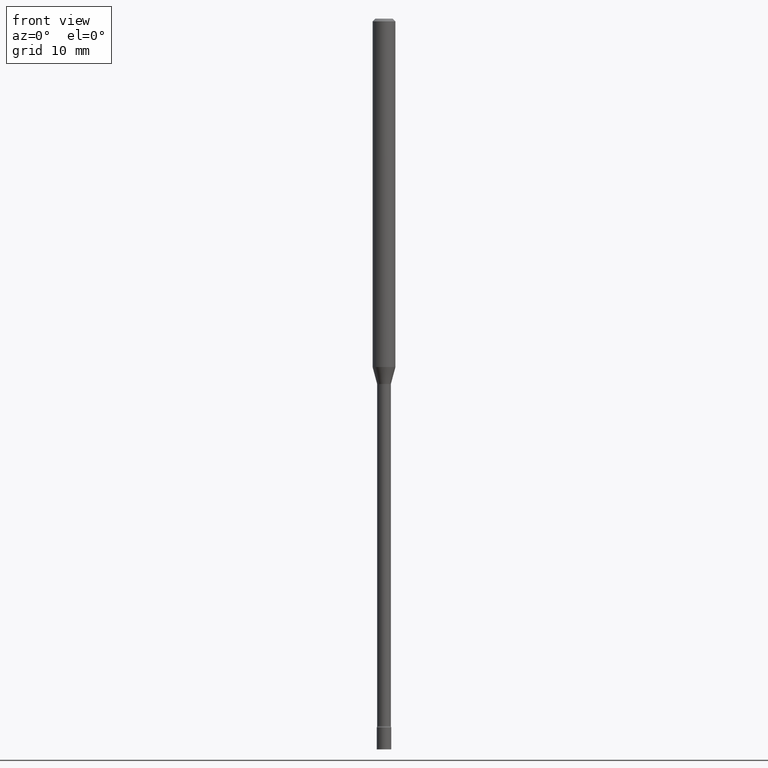
[diagram: clean part render]
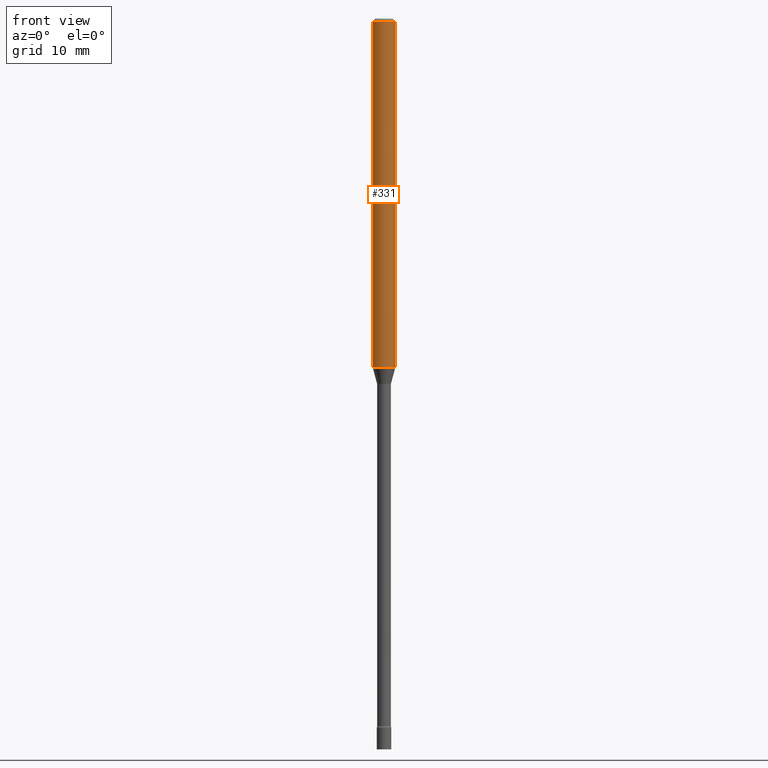
[diagram: same view with one face highlighted and labeled with its STEP entity id]
A machine part, front view. The second image highlights one B-rep face of the part: STEP entity #331.
In plain terms, the highlighted cylindrical surface (edge-blend (fillet) strip) has radius 1.5875 mm, axis along (-0, 0, 1).
Its self-contained STEP definition (entity closure, byte-faithful):
#34 = ORIENTED_EDGE ( 'NONE', *, *, #66, .F. ) ;
#53 = ORIENTED_EDGE ( 'NONE', *, *, #393, .T. ) ;
#66 = EDGE_CURVE ( 'NONE', #202, #379, #497, .T. ) ;
#77 = ORIENTED_EDGE ( 'NONE', *, *, #113, .T. ) ;
#96 = VERTEX_POINT ( 'NONE', #463 ) ;
#98 = EDGE_CURVE ( 'NONE', #379, #99, #358, .T. ) ;
#99 = VERTEX_POINT ( 'NONE', #421 ) ;
#102 = DIRECTION ( 'NONE',  ( -2.445468806185136877E-29, 3.491481338843145188E-15, 1.000000000000000000 ) ) ;
#113 = EDGE_CURVE ( 'NONE', #96, #99, #503, .T. ) ;
#125 = CARTESIAN_POINT ( 'NONE',  ( -0.06250000000000000000, -6.214416862655221682E-15, -1.907071934891535037 ) ) ;
#135 = CYLINDRICAL_SURFACE ( 'NONE', #402, 0.06250000000000000000 ) ;
#139 = CARTESIAN_POINT ( 'NONE',  ( -0.06250000000000000000, 4.440892098500626162E-16, -3.074334431409316114E-30 ) ) ;
#142 = VECTOR ( 'NONE', #430, 39.37007874015748143 ) ;
#145 = CARTESIAN_POINT ( 'NONE',  ( 0.000000000000000000, 0.000000000000000000, 0.000000000000000000 ) ) ;
#146 = CARTESIAN_POINT ( 'NONE',  ( 0.06250000000000000000, -4.364351673553916694E-16, 3.047610484872459871E-30 ) ) ;
#166 = ORIENTED_EDGE ( 'NONE', *, *, #98, .F. ) ;
#189 = AXIS2_PLACEMENT_3D ( 'NONE', #474, #348, #264 ) ;
#202 = VERTEX_POINT ( 'NONE', #125 ) ;
#253 = CARTESIAN_POINT ( 'NONE',  ( -0.06250000000000000000, -2.911349936443903664E-15, -0.01500000000000003067 ) ) ;
#257 = DIRECTION ( 'NONE',  ( 1.000000000000000000, -6.982962677686262766E-15, 0.000000000000000000 ) ) ;
#264 = DIRECTION ( 'NONE',  ( 1.000000000000000000, -6.982962677686266711E-15, 0.000000000000000000 ) ) ;
#331 = ADVANCED_FACE ( 'NONE', ( #415 ), #135, .T. ) ;
#335 = CARTESIAN_POINT ( 'NONE',  ( 4.663684927928380313E-29, -6.658506072505285087E-15, -1.907071934891535037 ) ) ;
#348 = DIRECTION ( 'NONE',  ( -2.445468806185136597E-29, 3.491481338843145583E-15, 1.000000000000000000 ) ) ;
#358 = CIRCLE ( 'NONE', #189, 0.06250000000000000000 ) ;
#370 = EDGE_LOOP ( 'NONE', ( #34, #53, #77, #166 ) ) ;
#377 = CIRCLE ( 'NONE', #417, 0.06250000000000000000 ) ;
#379 = VERTEX_POINT ( 'NONE', #253 ) ;
#393 = EDGE_CURVE ( 'NONE', #202, #96, #377, .T. ) ;
#402 = AXIS2_PLACEMENT_3D ( 'NONE', #145, #456, #501 ) ;
#415 = FACE_OUTER_BOUND ( 'NONE', #370, .T. ) ;
#417 = AXIS2_PLACEMENT_3D ( 'NONE', #335, #459, #257 ) ;
#421 = CARTESIAN_POINT ( 'NONE',  ( 0.06250000000000000000, -4.888073874380389458E-16, -0.01500000000000003067 ) ) ;
#430 = DIRECTION ( 'NONE',  ( -2.445468806185136877E-29, 3.491481338843145188E-15, 1.000000000000000000 ) ) ;
#456 = DIRECTION ( 'NONE',  ( -2.445468806185136597E-29, 3.491481338843145583E-15, 1.000000000000000000 ) ) ;
#459 = DIRECTION ( 'NONE',  ( -2.445468806185136597E-29, 3.491481338843145583E-15, 1.000000000000000000 ) ) ;
#461 = VECTOR ( 'NONE', #102, 39.37007874015748143 ) ;
#463 = CARTESIAN_POINT ( 'NONE',  ( 0.06250000000000000000, -7.094941239860676757E-15, -1.907071934891535037 ) ) ;
#474 = CARTESIAN_POINT ( 'NONE',  ( 3.668203209277712094E-31, -5.237222008264728876E-17, -0.01500000000000003067 ) ) ;
#497 = LINE ( 'NONE', #139, #461 ) ;
#501 = DIRECTION ( 'NONE',  ( 1.000000000000000000, -6.982962677686266711E-15, 4.876176775795935793E-29 ) ) ;
#503 = LINE ( 'NONE', #146, #142 ) ;